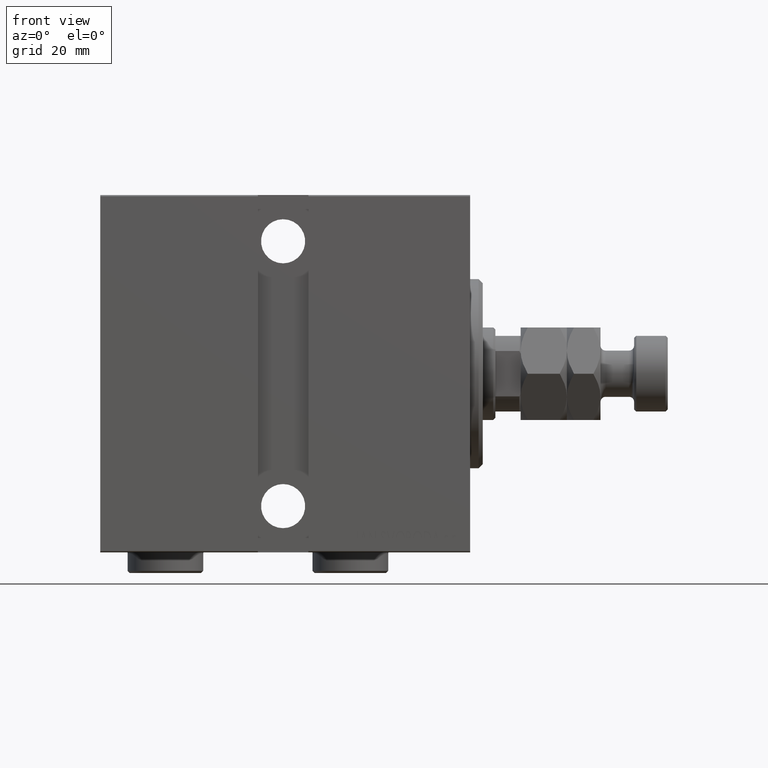
[diagram: clean part render]
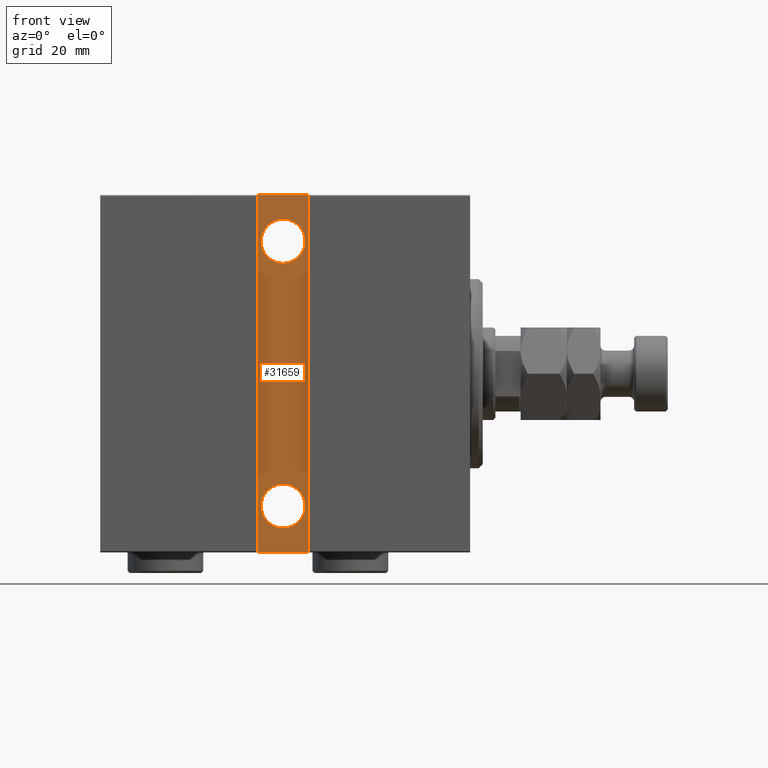
[diagram: same view with one face highlighted and labeled with its STEP entity id]
A machine part, front view. The second image highlights one B-rep face of the part: STEP entity #31659.
In plain terms, the highlighted planar face has unit normal (0, 1, 0).
Its self-contained STEP definition (entity closure, byte-faithful):
#140 = CARTESIAN_POINT ( 'NONE',  ( 50.49999999999999289, 28.50000000000000711, -42.50000000000000711 ) ) ;
#637 = CARTESIAN_POINT ( 'NONE',  ( 44.50000000000002132, 28.50000000000001066, -31.50000000000000000 ) ) ;
#2469 = CARTESIAN_POINT ( 'NONE',  ( 50.50000000000000711, 28.50000000000000711, 42.49999999999995737 ) ) ;
#2479 = VERTEX_POINT ( 'NONE', #3606 ) ;
#2561 = EDGE_CURVE ( 'NONE', #9952, #2479, #28304, .T. ) ;
#2631 = FACE_BOUND ( 'NONE', #12854, .T. ) ;
#2922 = AXIS2_PLACEMENT_3D ( 'NONE', #24326, #20184, #10239 ) ;
#3156 = ORIENTED_EDGE ( 'NONE', *, *, #27855, .T. ) ;
#3377 = LINE ( 'NONE', #140, #15851 ) ;
#3606 = CARTESIAN_POINT ( 'NONE',  ( 44.50000000000002132, 28.50000000000001066, 36.75000000000000000 ) ) ;
#4191 = VERTEX_POINT ( 'NONE', #30315 ) ;
#5023 = DIRECTION ( 'NONE',  ( 0.000000000000000000, 0.000000000000000000, -1.000000000000000000 ) ) ;
#5496 = DIRECTION ( 'NONE',  ( -1.632680918566407286E-16, -0.000000000000000000, -1.000000000000000000 ) ) ;
#5924 = AXIS2_PLACEMENT_3D ( 'NONE', #15356, #28985, #36611 ) ;
#7027 = EDGE_CURVE ( 'NONE', #4191, #22813, #3377, .T. ) ;
#7890 = EDGE_CURVE ( 'NONE', #35270, #18431, #31369, .T. ) ;
#8216 = ORIENTED_EDGE ( 'NONE', *, *, #33383, .T. ) ;
#8449 = ORIENTED_EDGE ( 'NONE', *, *, #7027, .T. ) ;
#8536 = VERTEX_POINT ( 'NONE', #10889 ) ;
#8958 = LINE ( 'NONE', #2469, #45159 ) ;
#9445 = CARTESIAN_POINT ( 'NONE',  ( 38.50000000000000711, 28.50000000000000711, 42.49999999999995737 ) ) ;
#9952 = VERTEX_POINT ( 'NONE', #21107 ) ;
#10239 = DIRECTION ( 'NONE',  ( 0.000000000000000000, -0.000000000000000000, -1.000000000000000000 ) ) ;
#10889 = CARTESIAN_POINT ( 'NONE',  ( 50.50000000000000711, 28.50000000000000711, 42.49999999999995737 ) ) ;
#11805 = CIRCLE ( 'NONE', #5924, 5.249999999999997335 ) ;
#12054 = CARTESIAN_POINT ( 'NONE',  ( 44.50000000000002132, 28.50000000000001066, -36.75000000000000000 ) ) ;
#12588 = VECTOR ( 'NONE', #5496, 1000.000000000000000 ) ;
#12854 = EDGE_LOOP ( 'NONE', ( #3156, #25132 ) ) ;
#13834 = DIRECTION ( 'NONE',  ( 0.000000000000000000, -1.000000000000000000, 0.000000000000000000 ) ) ;
#14974 = ORIENTED_EDGE ( 'NONE', *, *, #7890, .T. ) ;
#15356 = CARTESIAN_POINT ( 'NONE',  ( 44.50000000000002132, 28.50000000000001066, 31.50000000000000000 ) ) ;
#15414 = CARTESIAN_POINT ( 'NONE',  ( 50.49999999999999289, 28.50000000000000711, -42.50000000000000711 ) ) ;
#15851 = VECTOR ( 'NONE', #17905, 1000.000000000000000 ) ;
#16192 = ORIENTED_EDGE ( 'NONE', *, *, #36152, .T. ) ;
#17523 = DIRECTION ( 'NONE',  ( 0.000000000000000000, 0.000000000000000000, -1.000000000000000000 ) ) ;
#17905 = DIRECTION ( 'NONE',  ( -1.000000000000000000, 0.000000000000000000, 0.000000000000000000 ) ) ;
#18431 = VERTEX_POINT ( 'NONE', #12054 ) ;
#20184 = DIRECTION ( 'NONE',  ( 0.000000000000000000, -1.000000000000000000, 0.000000000000000000 ) ) ;
#20630 = FACE_OUTER_BOUND ( 'NONE', #21119, .T. ) ;
#21107 = CARTESIAN_POINT ( 'NONE',  ( 44.50000000000002132, 28.50000000000001066, 26.25000000000000355 ) ) ;
#21119 = EDGE_LOOP ( 'NONE', ( #21551, #16192, #8216, #8449 ) ) ;
#21551 = ORIENTED_EDGE ( 'NONE', *, *, #22072, .T. ) ;
#22072 = EDGE_CURVE ( 'NONE', #22813, #43993, #30909, .T. ) ;
#22813 = VERTEX_POINT ( 'NONE', #23880 ) ;
#23029 = DIRECTION ( 'NONE',  ( 1.000000000000000000, -0.000000000000000000, -0.000000000000000000 ) ) ;
#23646 = FACE_BOUND ( 'NONE', #33639, .T. ) ;
#23780 = CARTESIAN_POINT ( 'NONE',  ( 44.50000000000002132, 28.50000000000001066, -31.50000000000000000 ) ) ;
#23880 = CARTESIAN_POINT ( 'NONE',  ( 38.50000000000000000, 28.50000000000000711, -42.50000000000000711 ) ) ;
#24326 = CARTESIAN_POINT ( 'NONE',  ( 0.000000000000000000, 28.50000000000000711, 0.000000000000000000 ) ) ;
#24913 = ORIENTED_EDGE ( 'NONE', *, *, #30463, .T. ) ;
#25132 = ORIENTED_EDGE ( 'NONE', *, *, #2561, .T. ) ;
#26499 = CIRCLE ( 'NONE', #37621, 5.249999999999997335 ) ;
#27108 = PLANE ( 'NONE',  #2922 ) ;
#27855 = EDGE_CURVE ( 'NONE', #2479, #9952, #11805, .T. ) ;
#28077 = DIRECTION ( 'NONE',  ( 0.000000000000000000, -1.000000000000000000, 0.000000000000000000 ) ) ;
#28304 = CIRCLE ( 'NONE', #30518, 5.249999999999997335 ) ;
#28985 = DIRECTION ( 'NONE',  ( 0.000000000000000000, -1.000000000000000000, 0.000000000000000000 ) ) ;
#30315 = CARTESIAN_POINT ( 'NONE',  ( 50.50000000000000711, 28.50000000000000355, -42.50000000000000711 ) ) ;
#30463 = EDGE_CURVE ( 'NONE', #18431, #35270, #26499, .T. ) ;
#30518 = AXIS2_PLACEMENT_3D ( 'NONE', #31539, #28077, #42652 ) ;
#30909 = LINE ( 'NONE', #37178, #37578 ) ;
#31369 = CIRCLE ( 'NONE', #40998, 5.249999999999997335 ) ;
#31539 = CARTESIAN_POINT ( 'NONE',  ( 44.50000000000002132, 28.50000000000001066, 31.50000000000000000 ) ) ;
#31659 = ADVANCED_FACE ( 'NONE', ( #2631, #23646, #20630 ), #27108, .F. ) ;
#32949 = DIRECTION ( 'NONE',  ( 0.000000000000000000, -1.000000000000000000, 0.000000000000000000 ) ) ;
#33383 = EDGE_CURVE ( 'NONE', #8536, #4191, #43860, .T. ) ;
#33639 = EDGE_LOOP ( 'NONE', ( #14974, #24913 ) ) ;
#34387 = DIRECTION ( 'NONE',  ( 8.163404592832036431E-17, 0.000000000000000000, 1.000000000000000000 ) ) ;
#35270 = VERTEX_POINT ( 'NONE', #45490 ) ;
#36152 = EDGE_CURVE ( 'NONE', #43993, #8536, #8958, .T. ) ;
#36611 = DIRECTION ( 'NONE',  ( 0.000000000000000000, 0.000000000000000000, -1.000000000000000000 ) ) ;
#37178 = CARTESIAN_POINT ( 'NONE',  ( 38.50000000000000000, 28.50000000000000711, -42.50000000000000711 ) ) ;
#37578 = VECTOR ( 'NONE', #34387, 1000.000000000000000 ) ;
#37621 = AXIS2_PLACEMENT_3D ( 'NONE', #637, #32949, #5023 ) ;
#40998 = AXIS2_PLACEMENT_3D ( 'NONE', #23780, #13834, #17523 ) ;
#42652 = DIRECTION ( 'NONE',  ( 0.000000000000000000, 0.000000000000000000, -1.000000000000000000 ) ) ;
#43860 = LINE ( 'NONE', #15414, #12588 ) ;
#43993 = VERTEX_POINT ( 'NONE', #9445 ) ;
#45159 = VECTOR ( 'NONE', #23029, 1000.000000000000000 ) ;
#45490 = CARTESIAN_POINT ( 'NONE',  ( 44.50000000000002132, 28.50000000000001066, -26.25000000000000355 ) ) ;